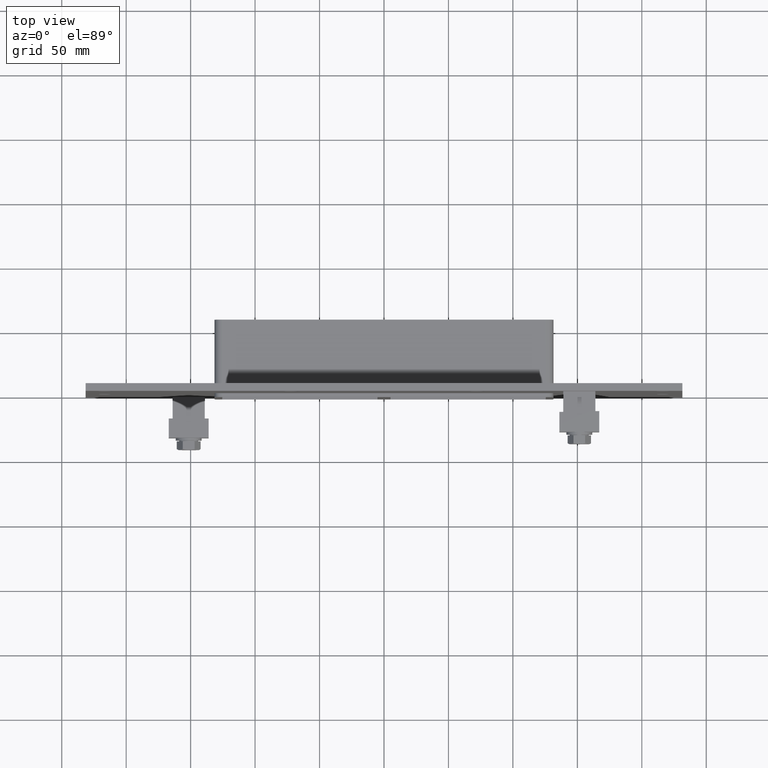
[diagram: clean part render]
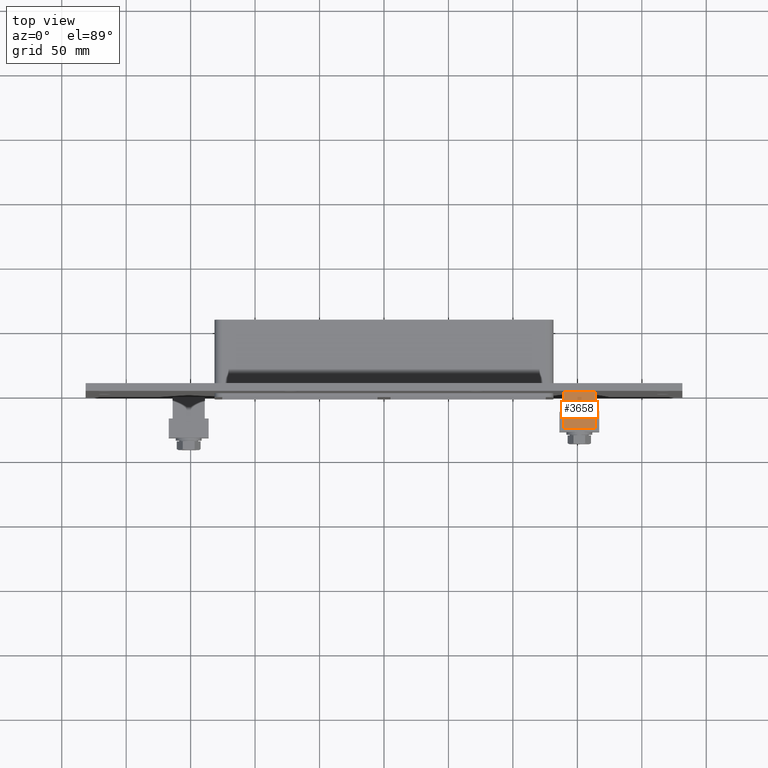
[diagram: same view with one face highlighted and labeled with its STEP entity id]
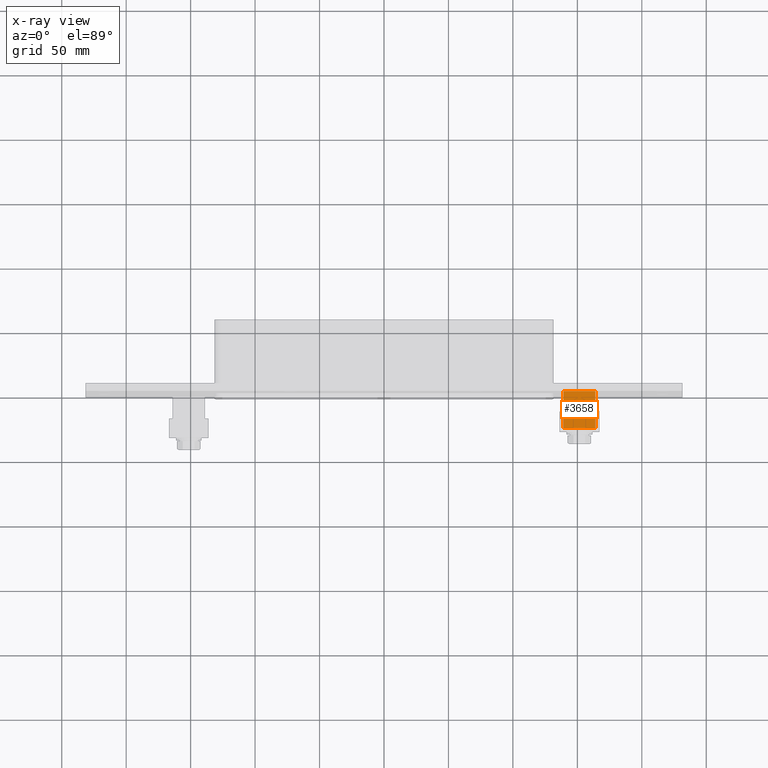
[diagram: x-ray of the same camera — body ghosted, the highlighted face saturated]
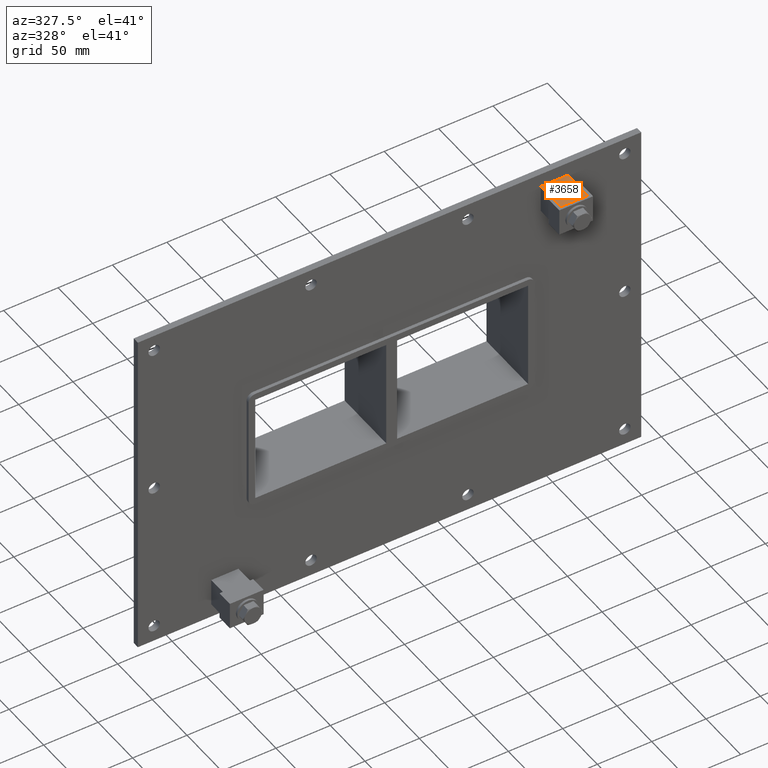
[diagram: same view with one face highlighted and labeled with its STEP entity id]
A machine part, top view. The second image highlights one B-rep face of the part: STEP entity #3658.
The next image is the same camera in x-ray: the body ghosted, the highlighted face saturated — about 0% of this face is hidden behind the body in this view.
A second angle (auxiliary view) of the same face is appended — the face is thin or edge-on in the first view.
In plain terms, the highlighted planar face has unit normal (0, 0, 1).
Its self-contained STEP definition (entity closure, byte-faithful):
#3595=CARTESIAN_POINT('',(139.00000000000003,0.0,144.00000000000003));
#3596=VERTEX_POINT('',#3595);
#3611=CARTESIAN_POINT('',(139.00000000000003,-28.600000000000001,144.00000000000003));
#3612=VERTEX_POINT('',#3611);
#3619=CARTESIAN_POINT('',(139.00000000000003,0.0,144.00000000000003));
#3620=DIRECTION('',(0.0,-1.0,0.0));
#3621=VECTOR('',#3620,28.600000000000001);
#3622=LINE('',#3619,#3621);
#3623=EDGE_CURVE('',#3596,#3612,#3622,.T.);
#3628=CARTESIAN_POINT('',(164.00000000000003,0.0,144.00000000000003));
#3629=DIRECTION('',(0.0,0.0,1.0));
#3630=DIRECTION('',(-1.0,0.0,0.0));
#3631=AXIS2_PLACEMENT_3D('',#3628,#3629,#3630);
#3632=PLANE('',#3631);
#3633=CARTESIAN_POINT('',(164.00000000000003,0.0,144.00000000000003));
#3634=VERTEX_POINT('',#3633);
#3635=CARTESIAN_POINT('',(139.00000000000003,0.0,144.00000000000003));
#3636=DIRECTION('',(1.0,0.0,0.0));
#3637=VECTOR('',#3636,24.999999999999972);
#3638=LINE('',#3635,#3637);
#3639=EDGE_CURVE('',#3596,#3634,#3638,.T.);
#3640=ORIENTED_EDGE('',*,*,#3639,.F.);
#3641=ORIENTED_EDGE('',*,*,#3623,.T.);
#3642=CARTESIAN_POINT('',(164.00000000000003,-28.600000000000001,144.00000000000003));
#3643=VERTEX_POINT('',#3642);
#3644=CARTESIAN_POINT('',(164.0,-28.600000000000001,144.00000000000003));
#3645=DIRECTION('',(-1.0,0.0,0.0));
#3646=VECTOR('',#3645,24.999999999999972);
#3647=LINE('',#3644,#3646);
#3648=EDGE_CURVE('',#3643,#3612,#3647,.T.);
#3649=ORIENTED_EDGE('',*,*,#3648,.F.);
#3650=CARTESIAN_POINT('',(164.00000000000003,0.0,144.00000000000003));
#3651=DIRECTION('',(0.0,-1.0,0.0));
#3652=VECTOR('',#3651,28.600000000000001);
#3653=LINE('',#3650,#3652);
#3654=EDGE_CURVE('',#3634,#3643,#3653,.T.);
#3655=ORIENTED_EDGE('',*,*,#3654,.F.);
#3656=EDGE_LOOP('',(#3640,#3641,#3649,#3655));
#3657=FACE_OUTER_BOUND('',#3656,.T.);
#3658=ADVANCED_FACE('',(#3657),#3632,.T.);